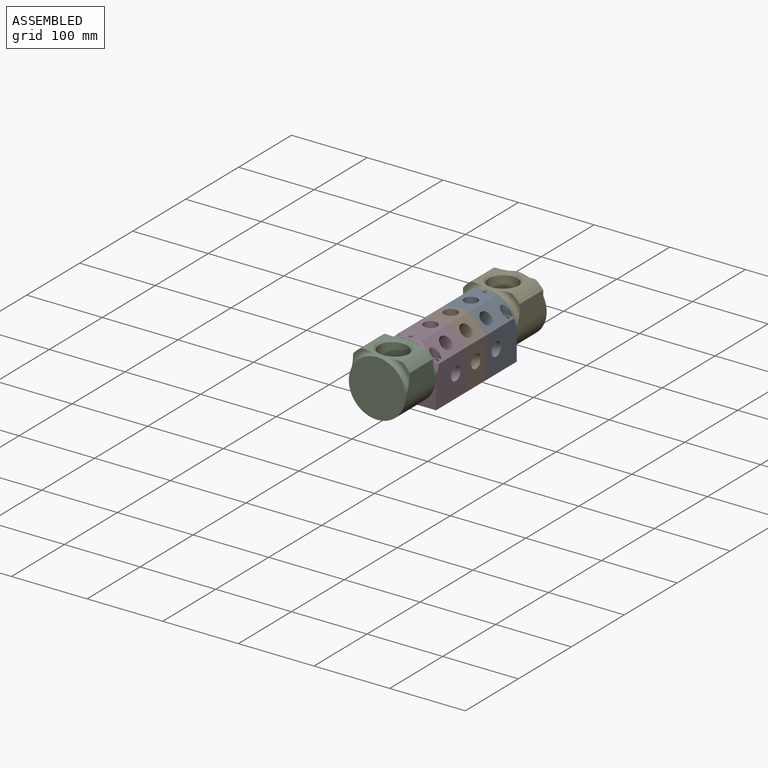
[diagram: assembled view]
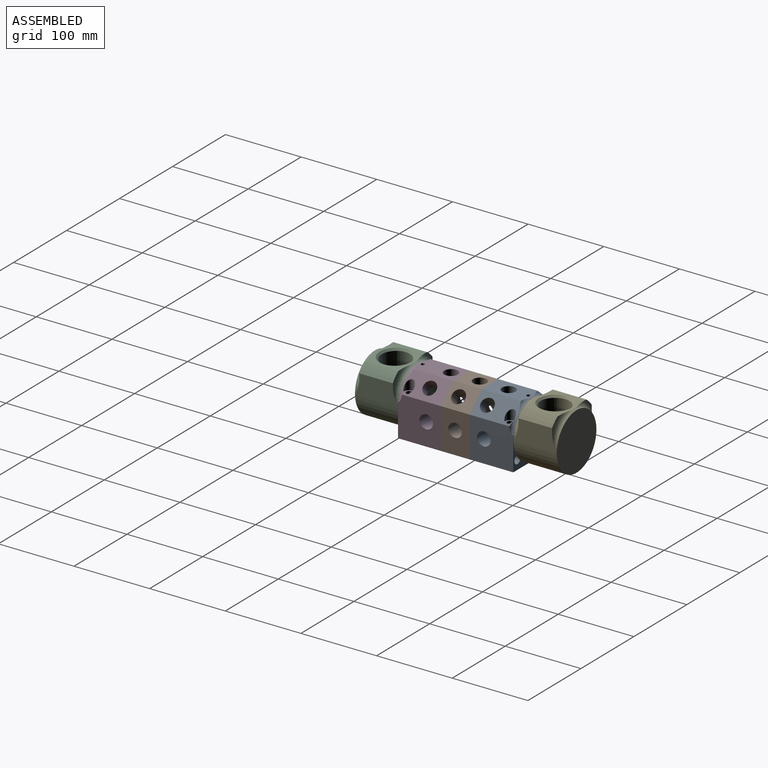
[diagram: assembled view, second angle]
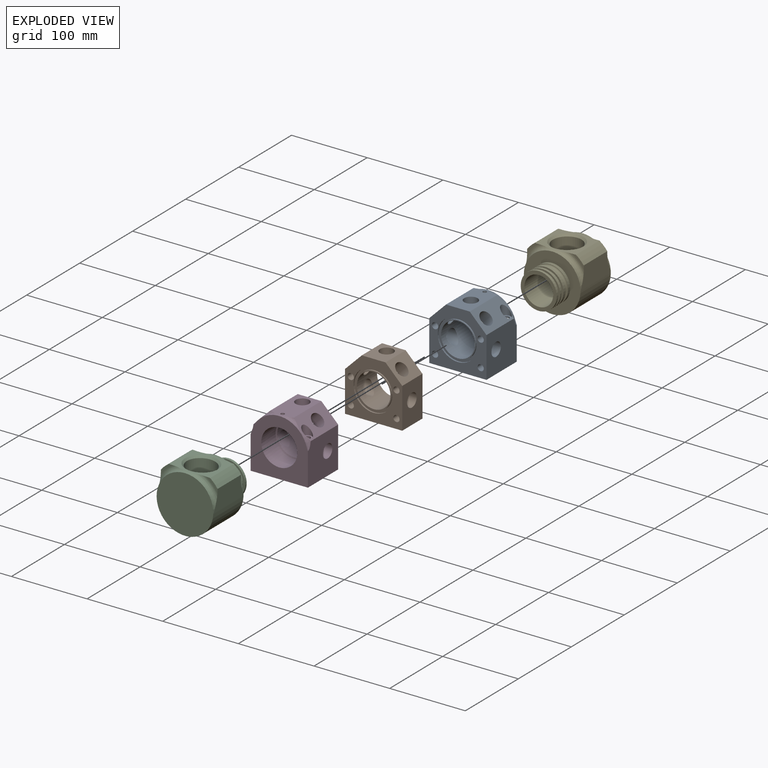
[diagram: exploded view]
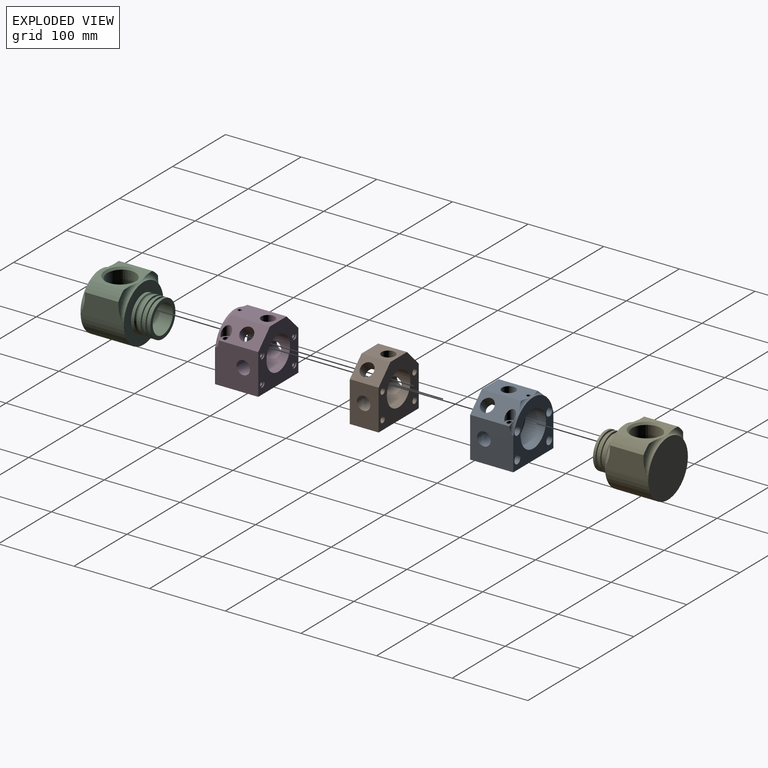
[diagram: exploded view, second angle]
ASSEMBLY  parts=5 mates=4
PART A: 54 faces, bbox 92.8x63.3x87 mm
  f0: cylinder r=23.81mm len=47.63mm, axis (0,1,0), area 3997.7mm2, adj f6,f18,f35,f50
  f1: cylinder r=5.56mm len=25.4mm, axis (0,1,0), area 775.9mm2, adj f18,f28,f46,f48
  f2: cylinder r=5.56mm len=25.4mm, axis (0,1,0), area 775.9mm2, adj f18,f29,f45,f46
  f3: cylinder r=5.56mm len=25.4mm, axis (0,1,0), area 775.9mm2, adj f18,f30,f40,f44
  f4: cylinder r=5.56mm len=25.4mm, axis (0,1,0), area 775.9mm2, adj f18,f31,f40,f43
  f5: cylinder r=22.23mm len=44.45mm, axis (0,-1,0), area 2797.6mm2, adj f6,f7,f35,f36,f37,f38,f39
  f6: cone r=0mm half-angle=59deg, axis (0,1,0), area 240.2mm2, adj f0,f5,f35
  f7: plane 46.99x46.99mm, normal (0,-1,0), area 182.4mm2, adj f5,f32
  f8: cylinder r=3.17mm len=6.35mm, axis (0,-1,0), area 126.7mm2, adj f20,f31
  f9: cylinder r=3.17mm len=6.35mm, axis (0,-1,0), area 126.7mm2, adj f22,f30
  f10: cylinder r=3.17mm len=6.35mm, axis (0,-1,0), area 126.7mm2, adj f24,f29
  f11: cylinder r=3.17mm len=6.35mm, axis (0,-1,0), area 126.7mm2, adj f26,f28
  f12: plane 75.69x57.15mm, normal (0,0,-1), area 4214.1mm2, adj f13,f17,f18,f19,f44,f45
  f13: plane 59.03x55.41mm, normal (1,0,0), area 2770.8mm2, adj f12,f14,f18,f19,f39,f52,f53
  f14: plane 55.79x22.17mm, normal (0.71,0,0.71), area 1259.5mm2, adj f13,f15,f19,f38,f47,f52
  f15: plane 55.79x31.37mm, normal (0,0,1), area 1419.7mm2, adj f14,f16,f19,f35,f50,f52
  f16: plane 55.79x22.17mm, normal (-0.71,0,0.71), area 1259.5mm2, adj f15,f17,f19,f37,f41,f52
  f17: plane 59.04x55.41mm, normal (-1,0,0), area 2770.8mm2, adj f12,f16,f18,f19,f36,f51,f52
  f18: plane 75.69x75.53mm, normal (0,1,0), area 2931.2mm2, adj f0,f1,f2,f3,f4,f12,f13,f17
  f19: plane 75.69x75.69mm, normal (0,-1,0), area 2791.7mm2, adj f12,f13,f14,f15,f16,f17,f21,f23
  f20: plane 8.2x8.2mm, normal (0,-1,0), area 21.2mm2, adj f8,f21
  f21: cylinder r=4.1mm len=25.4mm, axis (0,-1,0), area 654.7mm2, adj f19,f20
  f22: plane 8.2x8.2mm, normal (0,-1,0), area 21.2mm2, adj f9,f23
  f23: cylinder r=4.1mm len=25.4mm, axis (0,-1,0), area 654.7mm2, adj f19,f22
  f24: plane 8.2x8.2mm, normal (0,-1,0), area 21.2mm2, adj f10,f25
  f25: cylinder r=4.1mm len=25.4mm, axis (0,-1,0), area 654.7mm2, adj f19,f24
  f26: plane 8.2x8.2mm, normal (0,-1,0), area 21.2mm2, adj f11,f27
  f27: cylinder r=4.1mm len=25.4mm, axis (0,-1,0), area 654.7mm2, adj f19,f26
  f28: plane 11.13x11.13mm, normal (0,1,0), area 65.5mm2, adj f1,f11
  f29: plane 11.13x11.13mm, normal (0,1,0), area 65.5mm2, adj f2,f10
  f30: plane 11.13x11.13mm, normal (0,1,0), area 65.5mm2, adj f3,f9
  f31: plane 11.13x11.13mm, normal (0,1,0), area 65.5mm2, adj f4,f8
  f32: cylinder r=23.49mm len=46.99mm, axis (0,-1,0), area 300mm2, adj f7,f34
  f33: cylinder r=26.67mm len=53.34mm, axis (0,-1,0), area 340.5mm2, adj f19,f34
  f34: plane 53.34x53.34mm, normal (0,-1,0), area 500.4mm2, adj f32,f33
  f35: cylinder r=8.93mm len=17.86mm, axis (0,0,1), area 902.1mm2, adj f0,f5,f6,f15
  f36: cylinder r=8.93mm len=23.75mm, axis (1,0,0), area 1033.2mm2, adj f5,f17
  f37: cylinder r=8.93mm len=25mm, axis (-0.71,0,0.71), area 928.3mm2, adj f5,f16
  f38: cylinder r=8.93mm len=25mm, axis (0.71,0,0.71), area 928.3mm2, adj f5,f14
  f39: cylinder r=8.93mm len=23.75mm, axis (1,0,0), area 1033.1mm2, adj f5,f13
  f40: cylinder r=4.22mm len=26.78mm, axis (0,0,1), area 656.2mm2, adj f3,f4
  f41: cylinder r=6.36mm len=13.47mm, axis (0,0,1), area 284mm2, adj f16,f42
  f42: plane 12.73x12.73mm, normal (0,0,1), area 71.3mm2, adj f41,f43
  f43: cylinder r=4.22mm len=8.43mm, axis (0,0,1), area 79.5mm2, adj f4,f42
  f44: cylinder r=4.22mm len=8.82mm, axis (0,0,1), area 206.6mm2, adj f3,f12
  f45: cylinder r=4.22mm len=8.82mm, axis (0,0,1), area 206.6mm2, adj f2,f12
  f46: cylinder r=4.22mm len=26.78mm, axis (0,0,1), area 656.2mm2, adj f1,f2
  f47: cylinder r=6.36mm len=13.47mm, axis (0,0,1), area 284mm2, adj f14,f49
  f48: cylinder r=4.22mm len=8.43mm, axis (0,0,1), area 79.5mm2, adj f1,f49
  f49: plane 12.73x12.73mm, normal (0,0,1), area 71.3mm2, adj f47,f48
  f50: cylinder r=2.5mm len=14.17mm, axis (0,0,1), area 221mm2, adj f0,f15
  f51: torus R=25.55mm, axis (0,-1,0), area 10.6mm2, adj f17,f18,f52
  f52: torus R=43.69mm, axis (0,1,0), area 365.6mm2, adj f13,f14,f15,f16,f17,f18,f51,f53
  f53: torus R=25.55mm, axis (0,-1,0), area 10.6mm2, adj f13,f18,f52
PART B: 22 faces, bbox 75.7x38.1x75.7 mm
  f0: cylinder r=22.23mm len=44.45mm, axis (0,-1,0), area 3990.2mm2, adj f1,f8,f17,f18,f19,f20,f21
  f1: plane 46.99x46.99mm, normal (0,-1,0), area 182.4mm2, adj f0,f14
  f2: plane 75.69x38.1mm, normal (0,0,-1), area 2883.9mm2, adj f3,f7,f8,f9
  f3: plane 53.52x38.1mm, normal (1,0,0), area 1788.8mm2, adj f2,f4,f8,f9,f19
  f4: plane 38.1x22.17mm, normal (0.71,0,0.71), area 944.1mm2, adj f3,f5,f8,f9,f18
  f5: plane 38.1x31.35mm, normal (0,0,1), area 944.1mm2, adj f4,f6,f8,f9,f17
  f6: plane 38.1x22.17mm, normal (-0.71,0,0.71), area 944.1mm2, adj f5,f7,f8,f9,f21
  f7: plane 53.52x38.1mm, normal (-1,0,0), area 1788.8mm2, adj f2,f6,f8,f9,f20
  f8: plane 75.69x75.69mm, normal (0,1,0), area 3474.5mm2, adj f0,f2,f3,f4,f5,f6,f7,f10
  f9: plane 75.69x75.69mm, normal (0,-1,0), area 2791.7mm2, adj f2,f3,f4,f5,f6,f7,f10,f11
  f10: cylinder r=4.1mm len=38.1mm, axis (0,-1,0), area 982mm2, adj f8,f9
  f11: cylinder r=4.1mm len=38.1mm, axis (0,-1,0), area 982mm2, adj f8,f9
  f12: cylinder r=4.1mm len=38.1mm, axis (0,-1,0), area 982mm2, adj f8,f9
  f13: cylinder r=4.1mm len=38.1mm, axis (0,-1,0), area 982mm2, adj f8,f9
  f14: cylinder r=23.49mm len=46.99mm, axis (0,-1,0), area 300mm2, adj f1,f16
  f15: cylinder r=26.67mm len=53.34mm, axis (0,-1,0), area 340.5mm2, adj f9,f16
  f16: plane 53.34x53.34mm, normal (0,-1,0), area 500.4mm2, adj f14,f15
  f17: cylinder r=8.93mm len=17.86mm, axis (0,0,1), area 928.3mm2, adj f0,f5
  f18: cylinder r=8.93mm len=25mm, axis (0.71,0,0.71), area 928.3mm2, adj f0,f4
  f19: cylinder r=8.93mm len=23.75mm, axis (1,0,0), area 1033.1mm2, adj f0,f3
  f20: cylinder r=8.93mm len=23.75mm, axis (1,0,0), area 1033.2mm2, adj f0,f7
  f21: cylinder r=8.93mm len=25mm, axis (-0.71,0,0.71), area 928.3mm2, adj f0,f6
PART C: 43 faces, bbox 89.3x106.1x91.9 mm
  f0: cylinder r=18.62mm len=37.23mm, axis (1,0,0), area 517.1mm2, adj f8,f10,f11,f12,f16,f17
  f1: plane 57.3x53.9mm, normal (0,0,1), area 1093.5mm2, adj f4,f7,f20,f21,f23,f26,f27,f28
  f2: plane 58.48x30.14mm, normal (0,-1,0), area 1350.5mm2, adj f4,f21,f23,f24,f27,f28
  f3: plane 58.48x30.14mm, normal (0,1,0), area 1348.1mm2, adj f4,f20,f24,f26,f28,f29
  f4: torus R=43.46mm, axis (1,0,0), area 831.4mm2, adj f1,f2,f3,f20,f21,f24
  f5: cylinder r=19.05mm len=76.99mm, axis (1,0,0), area 6714.6mm2, adj f6,f9,f10,f13,f14,f16,f17,f19
  f6: cylinder r=19.05mm len=17.18mm, axis (1,0,0), area 82.4mm2, adj f5,f11,f19
  f7: cone r=19.05mm half-angle=45deg, axis (0,0,1), area 458.6mm2, adj f1,f12
  f8: plane 19.22x18.93mm, normal (-1,0,0), area 347.4mm2, adj f0,f10,f11,f15
  f9: cylinder r=24.45mm len=38.1mm, axis (0,0,-1), area 15.9mm2, adj f5,f13,f14,f18
  f10: cylinder r=24.45mm len=17.18mm, axis (0,0,-1), area 32.6mm2, adj f0,f5,f8,f15,f16,f19
  f11: cylinder r=24.45mm len=17.18mm, axis (0,0,-1), area 32.7mm2, adj f0,f6,f8,f15,f17,f19
  f12: cylinder r=19.05mm len=38.1mm, axis (0,0,-1), area 2884.4mm2, adj f0,f7,f13,f14,f16,f17,f18
  f13: plane 15.85x0.44mm, normal (0,0,-1), area 5.6mm2, adj f5,f9,f12,f18
  f14: plane 15.85x0.44mm, normal (0,0,-1), area 5.6mm2, adj f5,f9,f12,f18
  f15: plane 19.22x0.54mm, normal (0,0,-1), area 9.7mm2, adj f8,f10,f11,f19
  f16: plane 15.85x0.44mm, normal (0,0,-1), area 5.6mm2, adj f0,f5,f10,f12
  f17: plane 15.85x0.44mm, normal (0,0,-1), area 5.6mm2, adj f0,f5,f11,f12
  f18: cylinder r=18.62mm len=37.23mm, axis (1,0,0), area 452mm2, adj f9,f12,f13,f14
  f19: plane 38.1x36.23mm, normal (-1,0,0), area 836.4mm2, adj f5,f6,f10,f11,f15
  f20: plane 16.56x16.08mm, normal (1,0,0), area 63.1mm2, adj f1,f3,f4,f29
  f21: plane 16.56x16.08mm, normal (1,0,0), area 63.1mm2, adj f1,f2,f4,f23
  f22: plane 74.93x74.93mm, normal (1,0,0), area 4409.6mm2, adj f24
  f23: cylinder r=46.83mm len=44.45mm, axis (-1,0,0), area 638.5mm2, adj f1,f2,f21,f27
  f24: cylinder r=37.46mm len=74.93mm, axis (-1,0,0), area 6809.3mm2, adj f2,f3,f4,f22,f25,f28,f30
  f25: plane 38.81x0.03mm, normal (0,0,-1), area 1mm2, adj f24
  f26: plane 16.56x16.08mm, normal (-1,0,0), area 63.1mm2, adj f1,f3,f28,f29
  f27: plane 16.56x16.08mm, normal (-1,0,0), area 63.1mm2, adj f1,f2,f23,f28
  f28: torus R=43.46mm, axis (-1,0,0), area 831.4mm2, adj f1,f2,f3,f24,f26,f27
  f29: cylinder r=46.83mm len=44.45mm, axis (-1,0,0), area 638.5mm2, adj f1,f3,f20,f26
  f30: plane 74.93x74.93mm, normal (-1,0,0), area 2628.2mm2, adj f24,f42
  f31: torus R=23.81mm, axis (-1,0,0), area 1048mm2, adj f38,f42
  f32: cylinder r=21.45mm len=42.9mm, axis (-1,0,0), area 427.9mm2, adj f36,f37
  f33: plane 47.63x47.63mm, normal (1,0,0), area 335.9mm2, adj f35,f39
  f34: plane 47.63x47.63mm, normal (-1,0,0), area 335.9mm2, adj f35,f38
  f35: cylinder r=21.45mm len=42.9mm, axis (1,0,0), area 427.9mm2, adj f33,f34
  f36: plane 47.63x47.63mm, normal (-1,0,0), area 335.9mm2, adj f32,f39
  f37: plane 47.63x47.63mm, normal (1,0,0), area 335.9mm2, adj f32,f40
  f38: cylinder r=23.81mm len=47.63mm, axis (1,0,0), area 593.8mm2, adj f31,f34
  f39: cylinder r=23.81mm len=47.63mm, axis (-1,0,0), area 475mm2, adj f33,f36
  f40: cylinder r=23.81mm len=47.63mm, axis (-1,0,0), area 475mm2, adj f37,f41
  f41: plane 47.63x47.63mm, normal (-1,0,0), area 641.3mm2, adj f5,f40
  f42: cylinder r=23.81mm len=47.63mm, axis (-1,0,0), area 593.8mm2, adj f30,f31
PART D: 43 faces, bbox 92.8x63.3x87 mm
  f0: cylinder r=23.81mm len=47.63mm, axis (0,1,0), area 3995.7mm2, adj f2,f3,f10,f28,f29,f39
  f1: cylinder r=22.23mm len=44.45mm, axis (0,-1,0), area 2803.9mm2, adj f2,f3,f11,f28,f29,f30,f31,f32
  f2: cone r=0mm half-angle=59deg, axis (0,1,0), area 44.8mm2, adj f0,f1,f28,f29
  f3: cone r=0mm half-angle=59deg, axis (0,1,0), area 178.8mm2, adj f0,f1,f28,f29
  f4: plane 75.69x57.15mm, normal (0,0,-1), area 4214.1mm2, adj f5,f9,f10,f11,f33,f36
  f5: plane 59.03x55.41mm, normal (1,0,0), area 2770.8mm2, adj f4,f6,f10,f11,f32,f41,f42
  f6: plane 55.79x22.17mm, normal (0.71,0,0.71), area 1259.5mm2, adj f5,f7,f11,f28,f37,f41
  f7: plane 55.79x31.37mm, normal (0,0,1), area 1419.7mm2, adj f6,f8,f11,f31,f39,f41
  f8: plane 55.79x22.17mm, normal (-0.71,0,0.71), area 1259.5mm2, adj f7,f9,f11,f29,f34,f41
  f9: plane 59.04x55.41mm, normal (-1,0,0), area 2770.8mm2, adj f4,f8,f10,f11,f30,f40,f41
  f10: plane 75.69x75.53mm, normal (0,1,0), area 3320mm2, adj f0,f4,f5,f9,f40,f41,f42
  f11: plane 75.69x75.69mm, normal (0,-1,0), area 3474.5mm2, adj f1,f4,f5,f6,f7,f8,f9,f14
  f12: cylinder r=2.5mm len=14.29mm, axis (0,-1,0), area 224.4mm2, adj f13,f15
  f13: plane 8.2x8.2mm, normal (0,-1,0), area 33.2mm2, adj f12,f14
  f14: cylinder r=4.1mm len=8.2mm, axis (0,-1,0), area 40.9mm2, adj f11,f13
  f15: cone r=0mm half-angle=59deg, axis (0,-1,0), area 22.9mm2, adj f12
  f16: cylinder r=2.5mm len=14.29mm, axis (0,-1,0), area 224.4mm2, adj f17,f19
  f17: plane 8.2x8.2mm, normal (0,-1,0), area 33.2mm2, adj f16,f18
  f18: cylinder r=4.1mm len=8.2mm, axis (0,-1,0), area 40.9mm2, adj f11,f17
  f19: cone r=0mm half-angle=59deg, axis (0,-1,0), area 22.9mm2, adj f16
  f20: cylinder r=2.5mm len=14.29mm, axis (0,-1,0), area 224.4mm2, adj f21,f23
  f21: plane 8.2x8.2mm, normal (0,-1,0), area 33.2mm2, adj f20,f22
  f22: cylinder r=4.1mm len=8.2mm, axis (0,-1,0), area 40.9mm2, adj f11,f21
  f23: cone r=0mm half-angle=59deg, axis (0,-1,0), area 22.9mm2, adj f20
  f24: cylinder r=2.5mm len=14.29mm, axis (0,-1,0), area 224.4mm2, adj f25,f27
  f25: plane 8.2x8.2mm, normal (0,-1,0), area 33.2mm2, adj f24,f26
  f26: cylinder r=4.1mm len=8.2mm, axis (0,-1,0), area 40.9mm2, adj f11,f25
  f27: cone r=0mm half-angle=59deg, axis (0,-1,0), area 22.9mm2, adj f24
  f28: cylinder r=8.93mm len=25mm, axis (0.71,0,0.71), area 911.2mm2, adj f0,f1,f2,f3,f6
  f29: cylinder r=8.93mm len=25mm, axis (-0.71,0,0.71), area 911.2mm2, adj f0,f1,f2,f3,f8
  f30: cylinder r=8.93mm len=23.75mm, axis (1,0,0), area 1033.2mm2, adj f1,f9
  f31: cylinder r=8.93mm len=17.86mm, axis (0,0,1), area 928.3mm2, adj f1,f7
  f32: cylinder r=8.93mm len=23.75mm, axis (1,0,0), area 1033.1mm2, adj f1,f5
  f33: cylinder r=4.22mm len=54.1mm, axis (0,0,1), area 1433.3mm2, adj f4,f35
  f34: cylinder r=6.36mm len=13.47mm, axis (0,0,1), area 284mm2, adj f8,f35
  f35: plane 12.73x12.73mm, normal (0,0,1), area 71.3mm2, adj f33,f34
  f36: cylinder r=4.22mm len=54.1mm, axis (0,0,1), area 1433.3mm2, adj f4,f38
  f37: cylinder r=6.36mm len=13.47mm, axis (0,0,1), area 284mm2, adj f6,f38
  f38: plane 12.73x12.73mm, normal (0,0,1), area 71.3mm2, adj f36,f37
  f39: cylinder r=2.5mm len=14.17mm, axis (0,0,1), area 221mm2, adj f0,f7
  f40: torus R=25.55mm, axis (0,-1,0), area 10.6mm2, adj f9,f10,f41
  f41: torus R=43.69mm, axis (0,1,0), area 365.6mm2, adj f5,f6,f7,f8,f9,f10,f40,f42
  f42: torus R=25.55mm, axis (0,-1,0), area 10.6mm2, adj f5,f10,f41
PART E: same geometry as C
PLACE A at identity fixed
PLACE B t=(0,-38.1,0)mm
PLACE C rot(axis=(-0.02,0.02,-1),90deg) t=(0.01,-69.85,0.32)mm
PLACE D rot(axis=(0,0,1),180deg) t=(0,-38.1,0)mm
PLACE E rot(axis=(0,0,1),90deg) t=(0,31.75,0.32)mm
MATE fastened B.f0 <-> A.f0  axis (0,1,0) through (0,0,0)mm
MATE revolute C.f5 <-> D.f0  axis (0,1,0) through (0,-95.25,0)mm
MATE revolute E.f5 <-> A.f0  axis (0,-1,0) through (0,57.15,0)mm
MATE fastened D.f0 <-> B.f0  axis (0,1,0) through (0,-38.1,0)mm
